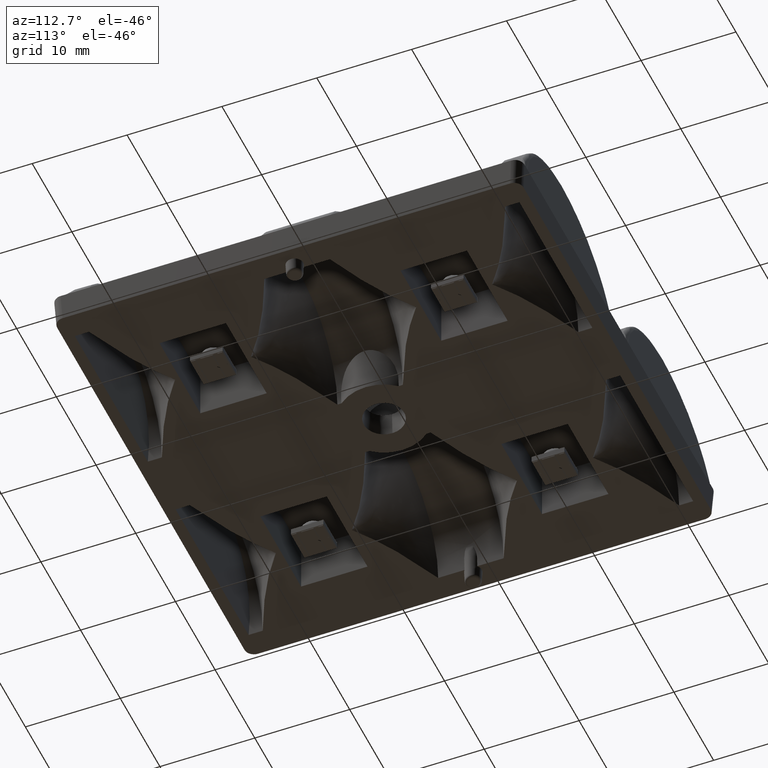
[diagram: clean part render]
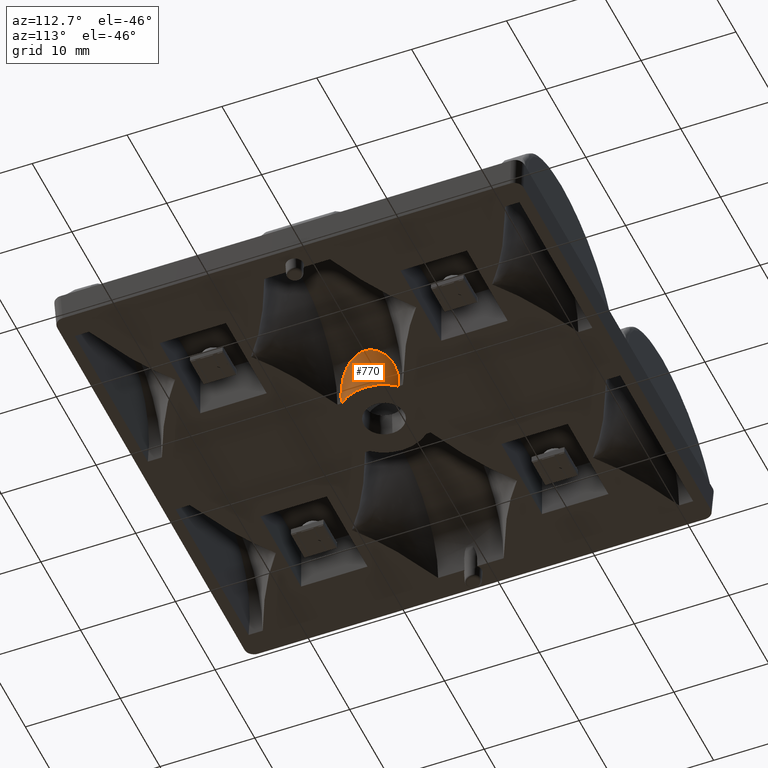
[diagram: same view with one face highlighted and labeled with its STEP entity id]
A machine part, auxiliary view. The second image highlights one B-rep face of the part: STEP entity #770.
In plain terms, the highlighted conical surface has half-angle 3 deg.
Its self-contained STEP definition (entity closure, byte-faithful):
#441=CONICAL_SURFACE('',#5634,4.74794430213186,3.);
#558=B_SPLINE_CURVE_WITH_KNOTS('',3,(#8610,#8611,#8612,#8613,#8614,#8615),
 .UNSPECIFIED.,.F.,.F.,(4,2,4),(0.,0.5,1.),.UNSPECIFIED.);
#559=B_SPLINE_CURVE_WITH_KNOTS('',3,(#8617,#8618,#8619,#8620),
 .UNSPECIFIED.,.F.,.F.,(4,4),(0.,1.),.UNSPECIFIED.);
#560=B_SPLINE_CURVE_WITH_KNOTS('',3,(#8622,#8623,#8624,#8625,#8626,#8627),
 .UNSPECIFIED.,.F.,.F.,(4,2,4),(0.,0.5,1.),.UNSPECIFIED.);
#770=ADVANCED_FACE('',(#1112),#441,.T.);
#1112=FACE_OUTER_BOUND('',#1415,.T.);
#1415=EDGE_LOOP('',(#2292,#2293,#2294,#2295));
#2292=ORIENTED_EDGE('',*,*,#4014,.T.);
#2293=ORIENTED_EDGE('',*,*,#4013,.T.);
#2294=ORIENTED_EDGE('',*,*,#4012,.T.);
#2295=ORIENTED_EDGE('',*,*,#3812,.T.);
#3257=VERTEX_POINT('',#7449);
#3258=VERTEX_POINT('',#7451);
#3431=VERTEX_POINT('',#8616);
#3432=VERTEX_POINT('',#8621);
#3812=EDGE_CURVE('',#3258,#3257,#4499,.T.);
#4012=EDGE_CURVE('',#3431,#3258,#558,.T.);
#4013=EDGE_CURVE('',#3432,#3431,#559,.T.);
#4014=EDGE_CURVE('',#3257,#3432,#560,.T.);
#4499=CIRCLE('',#5515,4.62103907078928);
#5515=AXIS2_PLACEMENT_3D('',#7450,#6042,#6043);
#5634=AXIS2_PLACEMENT_3D('',#9149,#6385,#6386);
#6042=DIRECTION('',(3.49148133884314E-15,-1.22464679914735E-16,1.));
#6043=DIRECTION('',(-1.,0.,3.4724207925913E-15));
#6385=DIRECTION('',(3.49148133884314E-15,-1.22464679914742E-16,1.));
#6386=DIRECTION('',(-1.,0.,2.84159617358883E-15));
#7449=CARTESIAN_POINT('',(16.2,-9.68271610653528,-1.38900000001749));
#7450=CARTESIAN_POINT('',(12.7,-12.6999999999999,-1.38900000001745));
#7451=CARTESIAN_POINT('',(16.2,-15.7172838934645,-1.38900000001749));
#8610=CARTESIAN_POINT('',(17.5745417882317,-12.7153710203513,3.44858243089439));
#8611=CARTESIAN_POINT('',(17.570694317086,-13.832062698476,3.4423586145354));
#8612=CARTESIAN_POINT('',(17.1044480195606,-14.7763839278256,2.71187994880071));
#8613=CARTESIAN_POINT('',(16.418674122219,-15.6904643191649,0.840166770749738));
#8614=CARTESIAN_POINT('',(16.2,-15.8058905843047,-0.28505536294857));
#8615=CARTESIAN_POINT('',(16.2,-15.7172838934645,-1.38900000001749));
#8616=CARTESIAN_POINT('',(17.5745417882317,-12.7153710203513,3.44858243089439));
#8617=CARTESIAN_POINT('',(17.5745417882317,-12.6846289796485,3.44858243089439));
#8618=CARTESIAN_POINT('',(17.5745770938813,-12.6948761065758,3.44863954266253));
#8619=CARTESIAN_POINT('',(17.5745770938813,-12.705123893424,3.44863954266253));
#8620=CARTESIAN_POINT('',(17.5745417882317,-12.7153710203513,3.44858243089439));
#8621=CARTESIAN_POINT('',(17.5745417882317,-12.6846289796485,3.44858243089439));
#8622=CARTESIAN_POINT('',(16.2,-9.68271610653529,-1.38900000001749));
#8623=CARTESIAN_POINT('',(16.2,-9.59477542320382,-0.293353104467527));
#8624=CARTESIAN_POINT('',(16.4169661341725,-9.70769135447811,0.834650247771672));
#8625=CARTESIAN_POINT('',(17.1042972513949,-10.6229839965063,2.71232097814086));
#8626=CARTESIAN_POINT('',(17.5706995883835,-11.5694672451492,3.44236714158869));
#8627=CARTESIAN_POINT('',(17.5745417882317,-12.6846289796486,3.44858243089548));
#9149=CARTESIAN_POINT('',(12.7,-12.6999999999999,1.03249606561812));